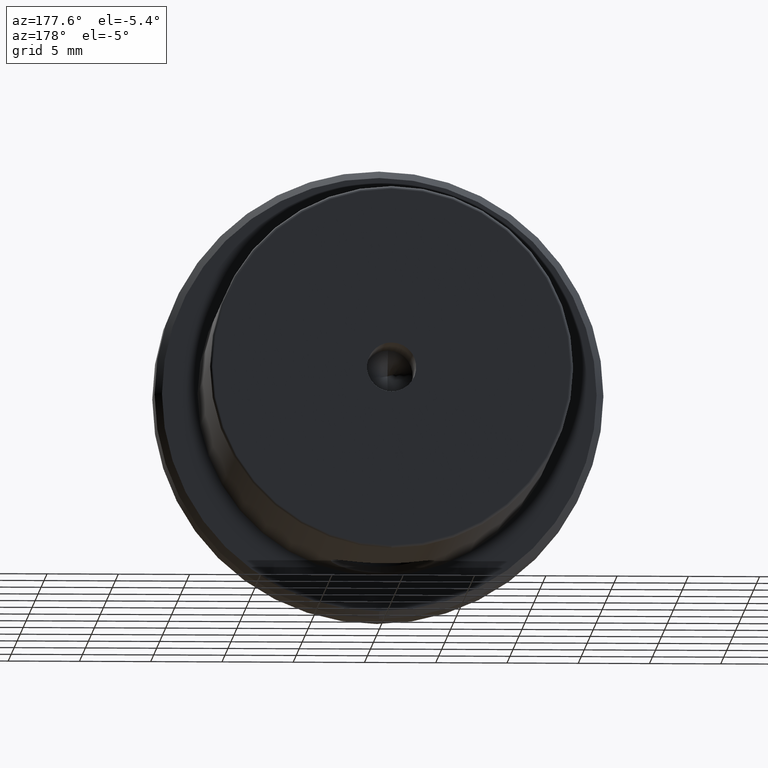
[diagram: clean part render]
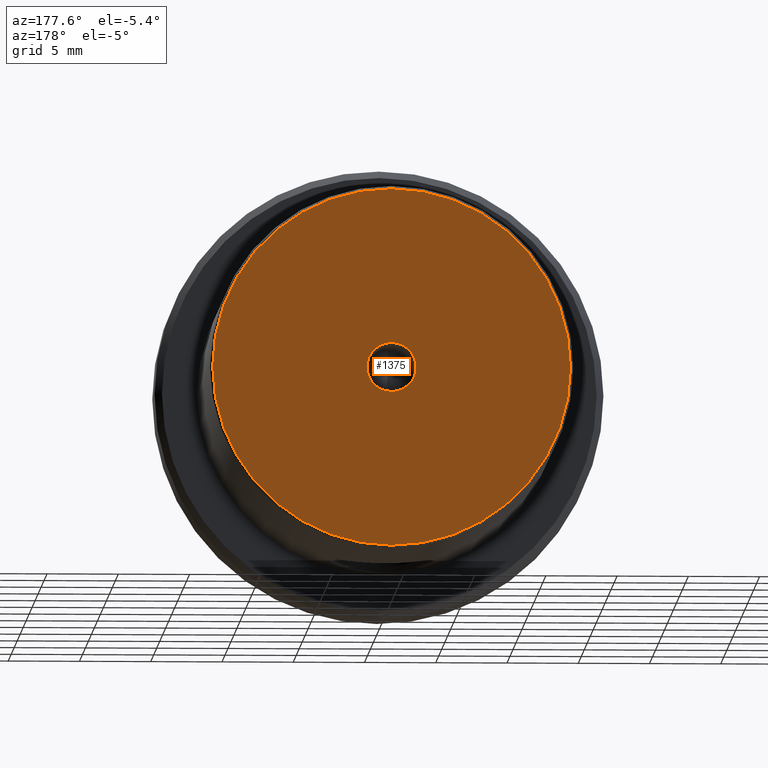
[diagram: same view with one face highlighted and labeled with its STEP entity id]
A machine part, auxiliary view. The second image highlights one B-rep face of the part: STEP entity #1375.
In plain terms, the highlighted planar face has unit normal (0, -1, -0).
Its self-contained STEP definition (entity closure, byte-faithful):
#14 = CARTESIAN_POINT ( 'NONE',  ( 0.0000000000000000000, 25.39999999999999900, 1.727199999999999200 ) ) ;
#18 = CARTESIAN_POINT ( 'NONE',  ( -12.54999999999999900, 25.39999999999999900, 0.0000000000000000000 ) ) ;
#36 = EDGE_CURVE ( 'NONE', #1131, #749, #773, .T. ) ;
#63 = AXIS2_PLACEMENT_3D ( 'NONE', #239, #1002, #457 ) ;
#98 = CARTESIAN_POINT ( 'NONE',  ( 0.0000000000000000000, 25.39999999999999900, 0.0000000000000000000 ) ) ;
#99 = AXIS2_PLACEMENT_3D ( 'NONE', #98, #1178, #853 ) ;
#128 = DIRECTION ( 'NONE',  ( 0.0000000000000000000, 0.0000000000000000000, -1.000000000000000000 ) ) ;
#133 = DIRECTION ( 'NONE',  ( 0.0000000000000000000, -1.000000000000000000, -0.0000000000000000000 ) ) ;
#144 = ORIENTED_EDGE ( 'NONE', *, *, #1300, .F. ) ;
#227 = EDGE_LOOP ( 'NONE', ( #261, #1305 ) ) ;
#239 = CARTESIAN_POINT ( 'NONE',  ( 0.0000000000000000000, 25.39999999999999900, 0.0000000000000000000 ) ) ;
#246 = EDGE_CURVE ( 'NONE', #1161, #893, #1097, .T. ) ;
#261 = ORIENTED_EDGE ( 'NONE', *, *, #246, .F. ) ;
#270 = CARTESIAN_POINT ( 'NONE',  ( 2.115209951487307800E-016, 25.39999999999999900, -1.727199999999999400 ) ) ;
#295 = CIRCLE ( 'NONE', #1149, 1.727199999999999200 ) ;
#415 = CARTESIAN_POINT ( 'NONE',  ( 0.0000000000000000000, 25.39999999999999900, 0.0000000000000000000 ) ) ;
#433 = FACE_OUTER_BOUND ( 'NONE', #227, .T. ) ;
#446 = DIRECTION ( 'NONE',  ( 0.0000000000000000000, 0.0000000000000000000, -1.000000000000000000 ) ) ;
#457 = DIRECTION ( 'NONE',  ( 0.0000000000000000000, 0.0000000000000000000, -1.000000000000000000 ) ) ;
#480 = CARTESIAN_POINT ( 'NONE',  ( 0.0000000000000000000, 25.39999999999999900, -12.54999999999999900 ) ) ;
#650 = CARTESIAN_POINT ( 'NONE',  ( 0.0000000000000000000, 25.39999999999999900, 0.0000000000000000000 ) ) ;
#710 = FACE_BOUND ( 'NONE', #1233, .T. ) ;
#727 = CIRCLE ( 'NONE', #63, 12.54999999999999900 ) ;
#749 = VERTEX_POINT ( 'NONE', #14 ) ;
#773 = CIRCLE ( 'NONE', #99, 1.727199999999999200 ) ;
#818 = EDGE_CURVE ( 'NONE', #893, #1161, #727, .T. ) ;
#837 = AXIS2_PLACEMENT_3D ( 'NONE', #18, #133, #128 ) ;
#853 = DIRECTION ( 'NONE',  ( 0.0000000000000000000, 0.0000000000000000000, 1.000000000000000000 ) ) ;
#893 = VERTEX_POINT ( 'NONE', #1182 ) ;
#970 = DIRECTION ( 'NONE',  ( 0.0000000000000000000, 0.0000000000000000000, 1.000000000000000000 ) ) ;
#1002 = DIRECTION ( 'NONE',  ( -0.0000000000000000000, -1.000000000000000000, -0.0000000000000000000 ) ) ;
#1061 = DIRECTION ( 'NONE',  ( -0.0000000000000000000, 1.000000000000000000, -0.0000000000000000000 ) ) ;
#1097 = CIRCLE ( 'NONE', #1407, 12.54999999999999900 ) ;
#1098 = DIRECTION ( 'NONE',  ( -0.0000000000000000000, -1.000000000000000000, -0.0000000000000000000 ) ) ;
#1131 = VERTEX_POINT ( 'NONE', #270 ) ;
#1149 = AXIS2_PLACEMENT_3D ( 'NONE', #415, #1061, #970 ) ;
#1161 = VERTEX_POINT ( 'NONE', #480 ) ;
#1178 = DIRECTION ( 'NONE',  ( -0.0000000000000000000, 1.000000000000000000, -0.0000000000000000000 ) ) ;
#1182 = CARTESIAN_POINT ( 'NONE',  ( 1.549178200921401600E-015, 25.39999999999999900, 12.54999999999999900 ) ) ;
#1233 = EDGE_LOOP ( 'NONE', ( #144, #1276 ) ) ;
#1276 = ORIENTED_EDGE ( 'NONE', *, *, #36, .F. ) ;
#1300 = EDGE_CURVE ( 'NONE', #749, #1131, #295, .T. ) ;
#1305 = ORIENTED_EDGE ( 'NONE', *, *, #818, .F. ) ;
#1318 = PLANE ( 'NONE',  #837 ) ;
#1375 = ADVANCED_FACE ( 'NONE', ( #710, #433 ), #1318, .F. ) ;
#1407 = AXIS2_PLACEMENT_3D ( 'NONE', #650, #1098, #446 ) ;